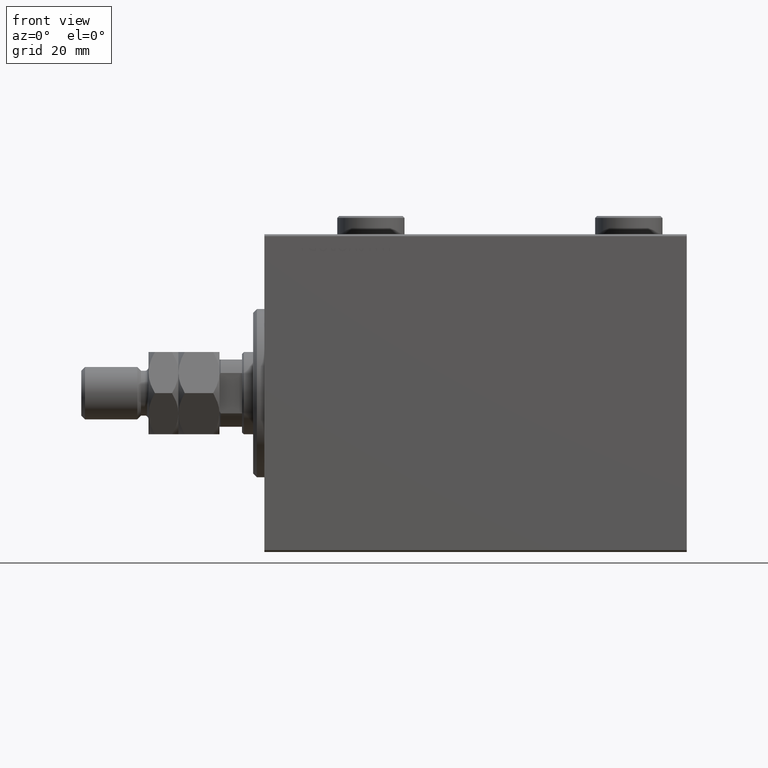
[diagram: clean part render]
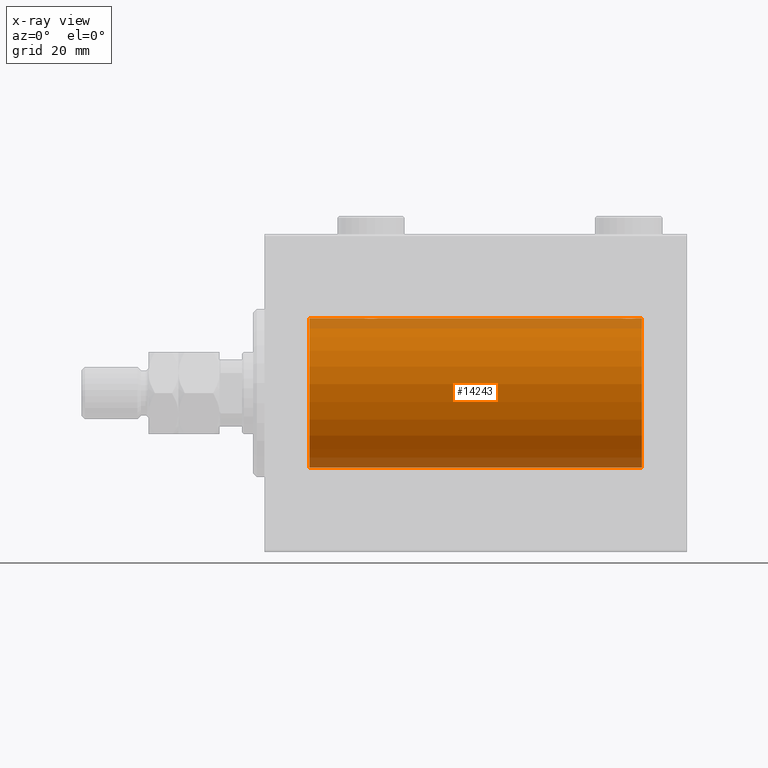
[diagram: x-ray — body ghosted, one internal face saturated and labeled with its STEP entity id]
A machine part, front view, then the same camera in x-ray: the body is ghosted and one INTERNAL B-rep face — a face not visible from any outside direction — is saturated and labeled: STEP entity #14243.
In plain terms, the highlighted cylindrical surface (partial cylindrical patch) has radius 20 mm, axis along (-1, -0, -0).
Its self-contained STEP definition (entity closure, byte-faithful):
#204 = CARTESIAN_POINT ( 'NONE',  ( 96.17693331080533881, -1.505486175075777311, 19.94347168299868045 ) ) ;
#357 = CARTESIAN_POINT ( 'NONE',  ( 97.63365196142450486, -1.999898234284069432, -19.89975896996866211 ) ) ;
#379 = LINE ( 'NONE', #7312, #32636 ) ;
#692 = CARTESIAN_POINT ( 'NONE',  ( 97.76077256031565810, -1.987205673487806967, 19.90104673894210663 ) ) ;
#836 = CARTESIAN_POINT ( 'NONE',  ( 95.75313023696931225, -1.008108445278694587, -19.97602680192586888 ) ) ;
#926 = CARTESIAN_POINT ( 'NONE',  ( 99.50000000000000000, -0.2644051013330985245, 19.99999999999999645 ) ) ;
#2584 = CARTESIAN_POINT ( 'NONE',  ( 26.75313023696928738, -1.008108445278687704, -19.97602680192586533 ) ) ;
#2619 = VECTOR ( 'NONE', #5228, 1000.000000000000000 ) ;
#3058 = CARTESIAN_POINT ( 'NONE',  ( 27.61420923329272981, -1.797933656607917596, -19.91908554465558367 ) ) ;
#3076 = ORIENTED_EDGE ( 'NONE', *, *, #27741, .F. ) ;
#3176 = B_SPLINE_CURVE_WITH_KNOTS ( 'NONE', 3,
 ( #43623, #25494, #40027, #17869, #14299, #204, #14759, #28837, #31131, #45667, #23983, #11426, #30017, #8967, #692, #26439, #40740, #33605, #44564, #45435, #20165, #4282, #15478, #38274, #926, #27551 ),
 .UNSPECIFIED., .F., .F.,
 ( 4, 2, 2, 2, 2, 2, 2, 2, 2, 2, 2, 2, 4 ),
 ( 0.006256819553329836213, 0.007038738568778784600, 0.007820657584227733855, 0.008211617091952222794, 0.008602576599676711733, 0.008993536107401198937, 0.009384495615125687876, 0.009775455122850176815, 0.01016641463057466402, 0.01055737413829915296, 0.01094833364602364190, 0.01173025266147261630, 0.01251217167692159418 ),
 .UNSPECIFIED. ) ;
#3292 = CARTESIAN_POINT ( 'NONE',  ( 26.55320515808203297, -0.5270924491156698810, -19.99450181871976184 ) ) ;
#3318 = EDGE_CURVE ( 'NONE', #11454, #30030, #14613, .T. ) ;
#3409 = VECTOR ( 'NONE', #45084, 1000.000000000000000 ) ;
#4282 = CARTESIAN_POINT ( 'NONE',  ( 99.09774691554729031, -1.230936344679272043, 19.96293863536309487 ) ) ;
#4429 = CARTESIAN_POINT ( 'NONE',  ( 98.38829437207090223, -1.796691196322323103, -19.91919800395357143 ) ) ;
#4637 = CARTESIAN_POINT ( 'NONE',  ( 95.50000000000000000, -1.207436508668459186E-14, -20.00000000000000000 ) ) ;
#4674 = B_SPLINE_CURVE_WITH_KNOTS ( 'NONE', 3,
 ( #6318, #13935, #32530, #32063, #46364, #35639, #39668, #24673, #43262, #6788, #14407, #36337, #43018, #10585, #7016, #35402, #36099, #21321, #28951, #39898, #20856, #18213, #39203, #10354, #6555, #7248 ),
 .UNSPECIFIED., .F., .F.,
 ( 4, 2, 2, 2, 2, 2, 2, 2, 2, 2, 2, 2, 4 ),
 ( 0.006256819553329811059, 0.007038738568778783733, 0.007820657584227756406, 0.008211617091952238406, 0.008602576599676722141, 0.008993536107401204141, 0.009384495615125686141, 0.009775455122850168141, 0.01016641463057465014, 0.01055737413829913214, 0.01094833364602361414, 0.01173025266147257814, 0.01251217167692154214 ),
 .UNSPECIFIED. ) ;
#4897 = CARTESIAN_POINT ( 'NONE',  ( 99.50000000000000000, 9.984436361108698300E-16, 20.00000000000000000 ) ) ;
#5228 = DIRECTION ( 'NONE',  ( -1.000000000000000000, -0.000000000000000000, -0.000000000000000000 ) ) ;
#5450 = ORIENTED_EDGE ( 'NONE', *, *, #14070, .T. ) ;
#5762 = AXIS2_PLACEMENT_3D ( 'NONE', #19629, #24796, #16052 ) ;
#6176 = CARTESIAN_POINT ( 'NONE',  ( 29.14630673924643744, -1.897222639860594029, -19.90987429971496780 ) ) ;
#6318 = CARTESIAN_POINT ( 'NONE',  ( 26.50000000000000355, -1.552596590610734385E-23, 20.00000000000000000 ) ) ;
#6408 = CARTESIAN_POINT ( 'NONE',  ( 30.09941524884030173, -1.228758402364235502, -19.96307487248084911 ) ) ;
#6555 = CARTESIAN_POINT ( 'NONE',  ( 30.49999999999999289, -0.2644051013330969702, 20.00000000000000711 ) ) ;
#6788 = CARTESIAN_POINT ( 'NONE',  ( 27.85369326075355545, -1.897222639860597360, 19.90987429971497491 ) ) ;
#6962 = ORIENTED_EDGE ( 'NONE', *, *, #9408, .F. ) ;
#7016 = CARTESIAN_POINT ( 'NONE',  ( 28.76077256031567586, -1.987205673487810298, 19.90104673894210663 ) ) ;
#7041 = EDGE_CURVE ( 'NONE', #10744, #27485, #14192, .T. ) ;
#7107 = CARTESIAN_POINT ( 'NONE',  ( 28.36941128289166159, -2.000100592782553921, -19.89973863218036598 ) ) ;
#7248 = CARTESIAN_POINT ( 'NONE',  ( 30.50000000000000000, -4.014971335008767791E-15, 20.00000000000000000 ) ) ;
#7312 = CARTESIAN_POINT ( 'NONE',  ( 101.0000000000000000, 0.000000000000000000, 20.00000000000000000 ) ) ;
#7314 = VERTEX_POINT ( 'NONE', #22487 ) ;
#7770 = CARTESIAN_POINT ( 'NONE',  ( 95.90225308445270969, -1.230936344679285144, -19.96293863536309843 ) ) ;
#8340 = LINE ( 'NONE', #26224, #2619 ) ;
#8469 = CARTESIAN_POINT ( 'NONE',  ( 96.28194580527851087, -1.591668229360199804, -19.93669678979812687 ) ) ;
#8898 = FACE_OUTER_BOUND ( 'NONE', #16898, .T. ) ;
#8967 = CARTESIAN_POINT ( 'NONE',  ( 97.63058871710833841, -2.000100592782551256, 19.89973863218035888 ) ) ;
#9138 = ORIENTED_EDGE ( 'NONE', *, *, #19357, .T. ) ;
#9222 = VERTEX_POINT ( 'NONE', #28254 ) ;
#9408 = EDGE_CURVE ( 'NONE', #11170, #27261, #23624, .T. ) ;
#9755 = CARTESIAN_POINT ( 'NONE',  ( 30.50000000000000000, 2.449293582768389958E-15, -20.00000000000000000 ) ) ;
#9983 = CARTESIAN_POINT ( 'NONE',  ( 27.49932780860757475, -1.736582545981376180, -19.92459705242981371 ) ) ;
#10354 = CARTESIAN_POINT ( 'NONE',  ( 30.44679484191797414, -0.5270924491156706582, 19.99450181871975829 ) ) ;
#10585 = CARTESIAN_POINT ( 'NONE',  ( 28.63058871710834552, -2.000100592782553921, 19.89973863218035888 ) ) ;
#10744 = VERTEX_POINT ( 'NONE', #28684 ) ;
#11170 = VERTEX_POINT ( 'NONE', #23683 ) ;
#11215 = B_SPLINE_CURVE_WITH_KNOTS ( 'NONE', 3,
 ( #44940, #26354, #40890, #19207, #40415, #11576, #26122, #15623, #4429, #40652, #30169, #44712, #357, #26583, #37087, #18971, #14920, #33514, #41122, #8469, #29465, #7770, #836, #44007, #11331, #38005 ),
 .UNSPECIFIED., .F., .F.,
 ( 4, 2, 2, 2, 2, 2, 2, 2, 2, 2, 2, 2, 4 ),
 ( 0.006256819553329824070, 0.007038738568778795009, 0.007820657584227765080, 0.008211617091952250549, 0.008602576599676736019, 0.008993536107401221488, 0.009384495615125706958, 0.009775455122850190692, 0.01016641463057467790, 0.01055737413829916163, 0.01094833364602364884, 0.01173025266147261630, 0.01251217167692158724 ),
 .UNSPECIFIED. ) ;
#11230 = DIRECTION ( 'NONE',  ( 0.000000000000000000, 0.000000000000000000, 1.000000000000000000 ) ) ;
#11331 = CARTESIAN_POINT ( 'NONE',  ( 95.50000000000002842, -0.2644051013331136790, -20.00000000000000355 ) ) ;
#11426 = CARTESIAN_POINT ( 'NONE',  ( 97.23641855908584830, -1.986835489085812867, 19.90108393514801577 ) ) ;
#11454 = VERTEX_POINT ( 'NONE', #28376 ) ;
#11456 = ORIENTED_EDGE ( 'NONE', *, *, #3318, .F. ) ;
#11576 = CARTESIAN_POINT ( 'NONE',  ( 98.82306668919471804, -1.505486175075774646, -19.94347168299867334 ) ) ;
#11772 = LINE ( 'NONE', #26310, #18969 ) ;
#12008 = DIRECTION ( 'NONE',  ( -1.000000000000000000, -0.000000000000000000, -0.000000000000000000 ) ) ;
#12338 = AXIS2_PLACEMENT_3D ( 'NONE', #40310, #18625, #11230 ) ;
#12494 = CARTESIAN_POINT ( 'NONE',  ( 11.99999999999999645, 2.449293598294706513E-15, -20.00000000000000000 ) ) ;
#13081 = ORIENTED_EDGE ( 'NONE', *, *, #7041, .T. ) ;
#13564 = CARTESIAN_POINT ( 'NONE',  ( 30.49999999999999645, -0.2610801504281900498, -19.99999999999999645 ) ) ;
#13696 = CARTESIAN_POINT ( 'NONE',  ( 11.99999999999999645, 0.000000000000000000, 0.000000000000000000 ) ) ;
#13935 = CARTESIAN_POINT ( 'NONE',  ( 26.50000000000000711, -0.2610801504281929919, 20.00000000000000000 ) ) ;
#14070 = EDGE_CURVE ( 'NONE', #11170, #7314, #4674, .T. ) ;
#14192 = B_SPLINE_CURVE_WITH_KNOTS ( 'NONE', 3,
 ( #9755, #13564, #46457, #20951, #6408, #38832, #31688, #17836, #46923, #6176, #35958, #14265, #28339, #7107, #28102, #31918, #42650, #3058, #9983, #20716, #36191, #17608, #2584, #3292, #17137, #24537 ),
 .UNSPECIFIED., .F., .F.,
 ( 4, 2, 2, 2, 2, 2, 2, 2, 2, 2, 2, 2, 4 ),
 ( 0.006256819553329842284, 0.007038738568778818427, 0.007820657584227792836, 0.008211617091952278305, 0.008602576599676762040, 0.008993536107401245774, 0.009384495615125729509, 0.009775455122850213244, 0.01016641463057469871, 0.01055737413829918071, 0.01094833364602366618, 0.01173025266147263365, 0.01251217167692159939 ),
 .UNSPECIFIED. ) ;
#14243 = ADVANCED_FACE ( 'NONE', ( #8898 ), #38203, .F. ) ;
#14265 = CARTESIAN_POINT ( 'NONE',  ( 28.76358144091416236, -1.986835489085814199, -19.90108393514801222 ) ) ;
#14299 = CARTESIAN_POINT ( 'NONE',  ( 95.90058475115969827, -1.228758402364240609, 19.96307487248084911 ) ) ;
#14407 = CARTESIAN_POINT ( 'NONE',  ( 27.98076487864722495, -1.935816449315125087, 19.90611141657401362 ) ) ;
#14613 = CIRCLE ( 'NONE', #12338, 20.00000000000000000 ) ;
#14703 = DIRECTION ( 'NONE',  ( -1.000000000000000000, -0.000000000000000000, -0.000000000000000000 ) ) ;
#14759 = CARTESIAN_POINT ( 'NONE',  ( 96.27971054205538337, -1.589957321664204448, 19.93683391378736403 ) ) ;
#14920 = CARTESIAN_POINT ( 'NONE',  ( 96.85651471266960755, -1.898187925611348081, -19.90978194174746818 ) ) ;
#15181 = LINE ( 'NONE', #22577, #16416 ) ;
#15478 = CARTESIAN_POINT ( 'NONE',  ( 99.24686976303073038, -1.008108445278681931, 19.97602680192586178 ) ) ;
#15623 = CARTESIAN_POINT ( 'NONE',  ( 98.50306556339604924, -1.735203193119900122, -19.92471783160911158 ) ) ;
#15648 = VERTEX_POINT ( 'NONE', #4637 ) ;
#16052 = DIRECTION ( 'NONE',  ( 0.000000000000000000, 0.000000000000000000, 1.000000000000000000 ) ) ;
#16416 = VECTOR ( 'NONE', #14703, 1000.000000000000000 ) ;
#16898 = EDGE_LOOP ( 'NONE', ( #11456, #26895, #24866, #45972, #13081, #19326, #28602, #6962, #5450, #33354, #9138, #3076 ) ) ;
#17137 = CARTESIAN_POINT ( 'NONE',  ( 26.50000000000001066, -0.2644051013331030209, -20.00000000000000355 ) ) ;
#17608 = CARTESIAN_POINT ( 'NONE',  ( 26.90225308445269903, -1.230936344679278260, -19.96293863536309132 ) ) ;
#17836 = CARTESIAN_POINT ( 'NONE',  ( 29.50306556339602437, -1.735203193119894349, -19.92471783160910803 ) ) ;
#17869 = CARTESIAN_POINT ( 'NONE',  ( 95.75174086539981033, -1.005710574260841872, 19.97614991974274190 ) ) ;
#18213 = CARTESIAN_POINT ( 'NONE',  ( 30.09774691554730097, -1.230936344679278482, 19.96293863536309132 ) ) ;
#18492 = EDGE_CURVE ( 'NONE', #11454, #9222, #15181, .T. ) ;
#18625 = DIRECTION ( 'NONE',  ( -1.000000000000000000, 0.000000000000000000, 0.000000000000000000 ) ) ;
#18969 = VECTOR ( 'NONE', #12008, 1000.000000000000000 ) ;
#18971 = CARTESIAN_POINT ( 'NONE',  ( 96.98351467081093347, -1.936551476643015191, -19.90603968831098669 ) ) ;
#19207 = CARTESIAN_POINT ( 'NONE',  ( 99.24825913460016125, -1.005710574260839651, -19.97614991974274901 ) ) ;
#19326 = ORIENTED_EDGE ( 'NONE', *, *, #29223, .T. ) ;
#19357 = EDGE_CURVE ( 'NONE', #24562, #43223, #3176, .T. ) ;
#19629 = CARTESIAN_POINT ( 'NONE',  ( 101.0000000000000000, 0.000000000000000000, 0.000000000000000000 ) ) ;
#20165 = CARTESIAN_POINT ( 'NONE',  ( 98.82096906847290541, -1.507328959728488238, 19.94333197382385947 ) ) ;
#20716 = CARTESIAN_POINT ( 'NONE',  ( 27.28194580527848601, -1.591668229360197140, -19.93669678979812332 ) ) ;
#20856 = CARTESIAN_POINT ( 'NONE',  ( 29.82096906847289119, -1.507328959728493567, 19.94333197382385592 ) ) ;
#20951 = CARTESIAN_POINT ( 'NONE',  ( 30.24825913460018612, -1.005710574260838985, -19.97614991974274190 ) ) ;
#21321 = CARTESIAN_POINT ( 'NONE',  ( 29.38579076670729151, -1.797933656607919817, 19.91908554465558367 ) ) ;
#21343 = CARTESIAN_POINT ( 'NONE',  ( 95.50000000000000000, -1.553188236289650144E-23, 20.00000000000000000 ) ) ;
#22487 = CARTESIAN_POINT ( 'NONE',  ( 30.50000000000000000, -4.014971335008767791E-15, 20.00000000000000000 ) ) ;
#22577 = CARTESIAN_POINT ( 'NONE',  ( 101.0000000000000000, 2.449293598294706513E-15, -20.00000000000000000 ) ) ;
#22928 = CARTESIAN_POINT ( 'NONE',  ( 101.0000000000000000, 0.000000000000000000, 20.00000000000000000 ) ) ;
#23490 = CARTESIAN_POINT ( 'NONE',  ( 26.50000000000000355, -3.809869420541414000E-15, -20.00000000000000000 ) ) ;
#23624 = LINE ( 'NONE', #45551, #3409 ) ;
#23683 = CARTESIAN_POINT ( 'NONE',  ( 26.50000000000000355, -1.552596590610734385E-23, 20.00000000000000000 ) ) ;
#23983 = CARTESIAN_POINT ( 'NONE',  ( 96.98076487864724982, -1.935816449315123977, 19.90611141657402072 ) ) ;
#24537 = CARTESIAN_POINT ( 'NONE',  ( 26.50000000000000355, -3.809869420541414000E-15, -20.00000000000000000 ) ) ;
#24562 = VERTEX_POINT ( 'NONE', #21343 ) ;
#24673 = CARTESIAN_POINT ( 'NONE',  ( 27.49693443660397918, -1.735203193119897902, 19.92471783160911158 ) ) ;
#24796 = DIRECTION ( 'NONE',  ( -1.000000000000000000, -0.000000000000000000, -0.000000000000000000 ) ) ;
#24866 = ORIENTED_EDGE ( 'NONE', *, *, #44989, .T. ) ;
#25494 = CARTESIAN_POINT ( 'NONE',  ( 95.50000000000001421, -0.2610801504281927699, 20.00000000000000355 ) ) ;
#25843 = VERTEX_POINT ( 'NONE', #12494 ) ;
#26122 = CARTESIAN_POINT ( 'NONE',  ( 98.72028945794467347, -1.589957321664213330, -19.93683391378736758 ) ) ;
#26224 = CARTESIAN_POINT ( 'NONE',  ( 101.0000000000000000, 2.449293598294706513E-15, -20.00000000000000000 ) ) ;
#26310 = CARTESIAN_POINT ( 'NONE',  ( 101.0000000000000000, 0.000000000000000000, 20.00000000000000000 ) ) ;
#26354 = CARTESIAN_POINT ( 'NONE',  ( 99.49999999999998579, -0.2610801504281911045, -19.99999999999999645 ) ) ;
#26439 = CARTESIAN_POINT ( 'NONE',  ( 98.01648532918906653, -1.936551476643001202, 19.90603968831098669 ) ) ;
#26583 = CARTESIAN_POINT ( 'NONE',  ( 97.36941128289166159, -2.000100592782561471, -19.89973863218036243 ) ) ;
#26768 = CIRCLE ( 'NONE', #32872, 20.00000000000000000 ) ;
#26895 = ORIENTED_EDGE ( 'NONE', *, *, #18492, .T. ) ;
#27261 = VERTEX_POINT ( 'NONE', #31175 ) ;
#27280 = EDGE_CURVE ( 'NONE', #24562, #7314, #379, .T. ) ;
#27427 = CARTESIAN_POINT ( 'NONE',  ( 101.0000000000000000, 2.449293598294706513E-15, -20.00000000000000000 ) ) ;
#27485 = VERTEX_POINT ( 'NONE', #23490 ) ;
#27551 = CARTESIAN_POINT ( 'NONE',  ( 99.50000000000000000, 9.984436361108698300E-16, 20.00000000000000000 ) ) ;
#27741 = EDGE_CURVE ( 'NONE', #30030, #43223, #11772, .T. ) ;
#28102 = CARTESIAN_POINT ( 'NONE',  ( 28.23922743968432059, -1.987205673487808966, -19.90104673894211018 ) ) ;
#28254 = CARTESIAN_POINT ( 'NONE',  ( 99.50000000000000000, 2.449293582762473501E-15, -20.00000000000000000 ) ) ;
#28339 = CARTESIAN_POINT ( 'NONE',  ( 28.63365196142448355, -1.999898234284062992, -19.89975896996866211 ) ) ;
#28376 = CARTESIAN_POINT ( 'NONE',  ( 101.0000000000000000, 2.449293598294706513E-15, -20.00000000000000000 ) ) ;
#28602 = ORIENTED_EDGE ( 'NONE', *, *, #39106, .T. ) ;
#28684 = CARTESIAN_POINT ( 'NONE',  ( 30.50000000000000000, 2.449293582768389958E-15, -20.00000000000000000 ) ) ;
#28837 = CARTESIAN_POINT ( 'NONE',  ( 96.49693443660399339, -1.735203193119890352, 19.92471783160910803 ) ) ;
#28951 = CARTESIAN_POINT ( 'NONE',  ( 29.50067219139244656, -1.736582545981375292, 19.92459705242981371 ) ) ;
#29223 = EDGE_CURVE ( 'NONE', #27485, #25843, #34581, .T. ) ;
#29465 = CARTESIAN_POINT ( 'NONE',  ( 96.17903093152715144, -1.507328959728500006, -19.94333197382386302 ) ) ;
#30017 = CARTESIAN_POINT ( 'NONE',  ( 97.36634803857555198, -1.999898234284061216, 19.89975896996866922 ) ) ;
#30030 = VERTEX_POINT ( 'NONE', #22928 ) ;
#30169 = CARTESIAN_POINT ( 'NONE',  ( 98.01923512135277861, -1.935816449315129750, -19.90611141657401362 ) ) ;
#31131 = CARTESIAN_POINT ( 'NONE',  ( 96.61170562792906935, -1.796691196322320216, 19.91919800395356788 ) ) ;
#31175 = CARTESIAN_POINT ( 'NONE',  ( 11.99999999999999645, 0.000000000000000000, 20.00000000000000000 ) ) ;
#31178 = VECTOR ( 'NONE', #41972, 1000.000000000000000 ) ;
#31688 = CARTESIAN_POINT ( 'NONE',  ( 29.72028945794465571, -1.589957321664208223, -19.93683391378736047 ) ) ;
#31918 = CARTESIAN_POINT ( 'NONE',  ( 27.98351467081095123, -1.936551476643005198, -19.90603968831098314 ) ) ;
#32063 = CARTESIAN_POINT ( 'NONE',  ( 26.75174086539981033, -1.005710574260841206, 19.97614991974274190 ) ) ;
#32530 = CARTESIAN_POINT ( 'NONE',  ( 26.55244937117492299, -0.5243189001515023984, 19.99457699142850586 ) ) ;
#32636 = VECTOR ( 'NONE', #43557, 1000.000000000000000 ) ;
#32872 = AXIS2_PLACEMENT_3D ( 'NONE', #13696, #46824, #39430 ) ;
#33354 = ORIENTED_EDGE ( 'NONE', *, *, #27280, .F. ) ;
#33514 = CARTESIAN_POINT ( 'NONE',  ( 96.61420923329271204, -1.797933656607926700, -19.91908554465557302 ) ) ;
#33605 = CARTESIAN_POINT ( 'NONE',  ( 98.38579076670728796, -1.797933656607910713, 19.91908554465557657 ) ) ;
#34581 = LINE ( 'NONE', #27427, #31178 ) ;
#35402 = CARTESIAN_POINT ( 'NONE',  ( 29.01648532918905943, -1.936551476643006753, 19.90603968831098669 ) ) ;
#35639 = CARTESIAN_POINT ( 'NONE',  ( 27.17693331080528907, -1.505486175075773758, 19.94347168299867690 ) ) ;
#35958 = CARTESIAN_POINT ( 'NONE',  ( 29.01923512135276795, -1.935816449315124643, -19.90611141657401717 ) ) ;
#36099 = CARTESIAN_POINT ( 'NONE',  ( 29.14348528733041377, -1.898187925611340088, 19.90978194174746818 ) ) ;
#36191 = CARTESIAN_POINT ( 'NONE',  ( 27.17903093152710525, -1.507328959728492457, -19.94333197382385592 ) ) ;
#36337 = CARTESIAN_POINT ( 'NONE',  ( 28.23641855908585541, -1.986835489085814643, 19.90108393514801222 ) ) ;
#37087 = CARTESIAN_POINT ( 'NONE',  ( 97.23922743968432769, -1.987205673487818514, -19.90104673894210663 ) ) ;
#38005 = CARTESIAN_POINT ( 'NONE',  ( 95.50000000000000000, -1.207436508668459186E-14, -20.00000000000000000 ) ) ;
#38203 = CYLINDRICAL_SURFACE ( 'NONE', #5762, 20.00000000000000000 ) ;
#38274 = CARTESIAN_POINT ( 'NONE',  ( 99.44679484191794927, -0.5270924491156651071, 19.99450181871975829 ) ) ;
#38832 = CARTESIAN_POINT ( 'NONE',  ( 29.82306668919470383, -1.505486175075772870, -19.94347168299867334 ) ) ;
#39106 = EDGE_CURVE ( 'NONE', #25843, #27261, #26768, .T. ) ;
#39203 = CARTESIAN_POINT ( 'NONE',  ( 30.24686976303072328, -1.008108445278687926, 19.97602680192586888 ) ) ;
#39430 = DIRECTION ( 'NONE',  ( 0.000000000000000000, 0.000000000000000000, 1.000000000000000000 ) ) ;
#39668 = CARTESIAN_POINT ( 'NONE',  ( 27.27971054205535850, -1.589957321664211998, 19.93683391378736047 ) ) ;
#39898 = CARTESIAN_POINT ( 'NONE',  ( 29.71805419472152110, -1.591668229360196252, 19.93669678979812332 ) ) ;
#40027 = CARTESIAN_POINT ( 'NONE',  ( 95.55244937117491588, -0.5243189001515019543, 19.99457699142849876 ) ) ;
#40310 = CARTESIAN_POINT ( 'NONE',  ( 101.0000000000000000, 0.000000000000000000, 0.000000000000000000 ) ) ;
#40415 = CARTESIAN_POINT ( 'NONE',  ( 99.09941524884030173, -1.228758402364235724, -19.96307487248084556 ) ) ;
#40652 = CARTESIAN_POINT ( 'NONE',  ( 98.14630673924646942, -1.897222639860602245, -19.90987429971496425 ) ) ;
#40740 = CARTESIAN_POINT ( 'NONE',  ( 98.14348528733043509, -1.898187925611334315, 19.90978194174746818 ) ) ;
#40890 = CARTESIAN_POINT ( 'NONE',  ( 99.44755062882506991, -0.5243189001514980685, -19.99457699142850231 ) ) ;
#41122 = CARTESIAN_POINT ( 'NONE',  ( 96.49932780860756054, -1.736582545981379289, -19.92459705242981016 ) ) ;
#41972 = DIRECTION ( 'NONE',  ( -1.000000000000000000, -0.000000000000000000, -0.000000000000000000 ) ) ;
#42650 = CARTESIAN_POINT ( 'NONE',  ( 27.85651471266959334, -1.898187925611338533, -19.90978194174746818 ) ) ;
#43018 = CARTESIAN_POINT ( 'NONE',  ( 28.36634803857552001, -1.999898234284063436, 19.89975896996866211 ) ) ;
#43223 = VERTEX_POINT ( 'NONE', #4897 ) ;
#43262 = CARTESIAN_POINT ( 'NONE',  ( 27.61170562792909422, -1.796691196322319994, 19.91919800395357143 ) ) ;
#43557 = DIRECTION ( 'NONE',  ( -1.000000000000000000, -0.000000000000000000, -0.000000000000000000 ) ) ;
#43623 = CARTESIAN_POINT ( 'NONE',  ( 95.50000000000000000, -1.553188236289650144E-23, 20.00000000000000000 ) ) ;
#44007 = CARTESIAN_POINT ( 'NONE',  ( 95.55320515808205073, -0.5270924491156777636, -19.99450181871976540 ) ) ;
#44252 = EDGE_CURVE ( 'NONE', #15648, #10744, #8340, .T. ) ;
#44564 = CARTESIAN_POINT ( 'NONE',  ( 98.50067219139243946, -1.736582545981368852, 19.92459705242980661 ) ) ;
#44712 = CARTESIAN_POINT ( 'NONE',  ( 97.76358144091416591, -1.986835489085820639, -19.90108393514801222 ) ) ;
#44940 = CARTESIAN_POINT ( 'NONE',  ( 99.50000000000000000, 2.449293582762473501E-15, -20.00000000000000000 ) ) ;
#44989 = EDGE_CURVE ( 'NONE', #9222, #15648, #11215, .T. ) ;
#45084 = DIRECTION ( 'NONE',  ( -1.000000000000000000, -0.000000000000000000, -0.000000000000000000 ) ) ;
#45435 = CARTESIAN_POINT ( 'NONE',  ( 98.71805419472153176, -1.591668229360190034, 19.93669678979813042 ) ) ;
#45551 = CARTESIAN_POINT ( 'NONE',  ( 101.0000000000000000, 0.000000000000000000, 20.00000000000000000 ) ) ;
#45667 = CARTESIAN_POINT ( 'NONE',  ( 96.85369326075360163, -1.897222639860597360, 19.90987429971497491 ) ) ;
#45972 = ORIENTED_EDGE ( 'NONE', *, *, #44252, .T. ) ;
#46364 = CARTESIAN_POINT ( 'NONE',  ( 26.90058475115969827, -1.228758402364236391, 19.96307487248084556 ) ) ;
#46457 = CARTESIAN_POINT ( 'NONE',  ( 30.44755062882508412, -0.5243189001514996228, -19.99457699142849876 ) ) ;
#46824 = DIRECTION ( 'NONE',  ( -1.000000000000000000, 0.000000000000000000, 0.000000000000000000 ) ) ;
#46923 = CARTESIAN_POINT ( 'NONE',  ( 29.38829437207091999, -1.796691196322316664, -19.91919800395357143 ) ) ;